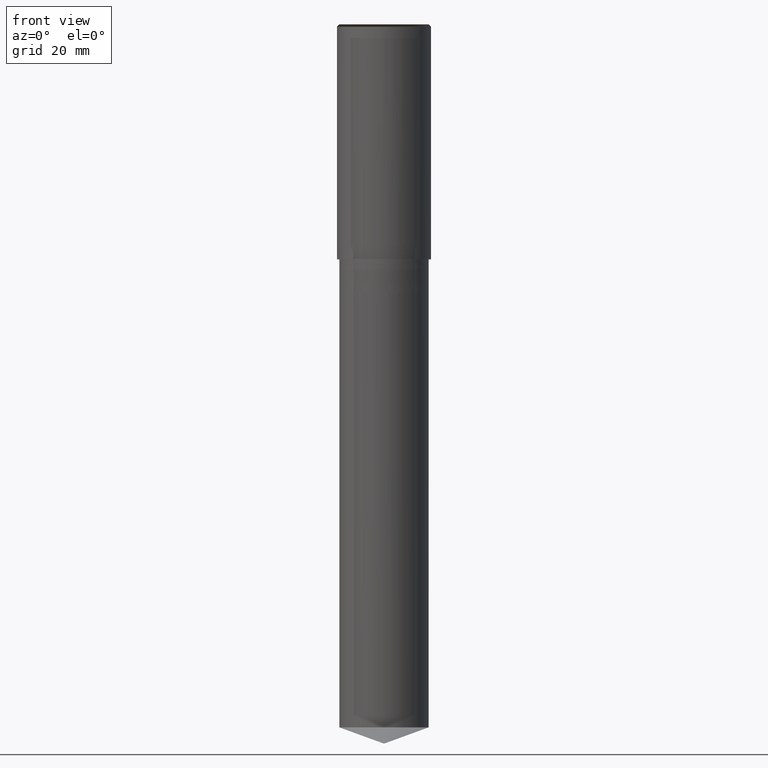
[diagram: clean part render]
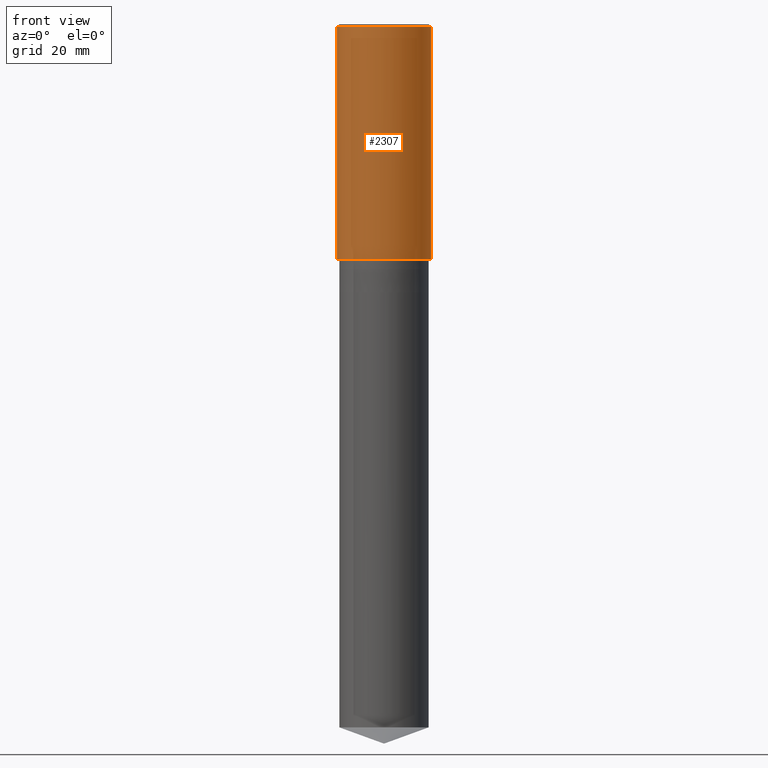
[diagram: same view with one face highlighted and labeled with its STEP entity id]
A machine part, front view. The second image highlights one B-rep face of the part: STEP entity #2307.
In plain terms, the highlighted face is a freeform B-spline surface patch.
Its self-contained STEP definition (entity closure, byte-faithful):
#1936=CARTESIAN_POINT('',(10.0,0.0,0.0));
#1940=CARTESIAN_POINT('',(-10.0,0.0,0.0));
#1941=CARTESIAN_POINT('',(10.0,0.0,49.5));
#1945=CARTESIAN_POINT('',(-10.0,0.0,49.5));
#1958=CARTESIAN_POINT('',(-10.0,-10.0,0.0));
#1959=CARTESIAN_POINT('',(0.0,-10.0,0.0));
#1960=CARTESIAN_POINT('',(10.0,-10.0,0.0));
#1961=CARTESIAN_POINT('',(-10.0,-10.0,49.5));
#1962=CARTESIAN_POINT('',(0.0,-10.0,49.5));
#1963=CARTESIAN_POINT('',(10.0,-10.0,49.5));
#2288=(
BOUNDED_SURFACE()
B_SPLINE_SURFACE(1,2,(
(#1940,#1958,#1959,#1960,#1936),
(#1945,#1961,#1962,#1963,#1941)
), .UNSPECIFIED.,.F.,.F.,.F.)
B_SPLINE_SURFACE_WITH_KNOTS((2,2),(3,2,3),(
0.0,1.0),(
0.0,0.5,1.0), .UNSPECIFIED.)
GEOMETRIC_REPRESENTATION_ITEM()
RATIONAL_B_SPLINE_SURFACE(((1.0,0.707106781187,1.0,0.707106781187,1.0),
(1.0,0.707106781187,1.0,0.707106781187,1.0)
))
REPRESENTATION_ITEM('')
SURFACE()
);
#2289=(
BOUNDED_CURVE()
B_SPLINE_CURVE(2,(#1936,#1960,#1959,#1958,#1940),.UNSPECIFIED.,.F.,.F.)
B_SPLINE_CURVE_WITH_KNOTS((3,2,3),
(0.0,0.5,1.0),.UNSPECIFIED.)
CURVE()
GEOMETRIC_REPRESENTATION_ITEM()
RATIONAL_B_SPLINE_CURVE((1.0,0.707106781187,1.0,0.707106781187,1.0))
REPRESENTATION_ITEM('')
);
#2290=(
BOUNDED_CURVE()
B_SPLINE_CURVE(1,(#1940,#1945),.UNSPECIFIED.,.F.,.F.)
B_SPLINE_CURVE_WITH_KNOTS((2,2),
(0.0,1.0),.UNSPECIFIED.)
CURVE()
GEOMETRIC_REPRESENTATION_ITEM()
RATIONAL_B_SPLINE_CURVE((1.0,1.0))
REPRESENTATION_ITEM('')
);
#2291=(
BOUNDED_CURVE()
B_SPLINE_CURVE(2,(#1945,#1961,#1962,#1963,#1941),.UNSPECIFIED.,.F.,.F.)
B_SPLINE_CURVE_WITH_KNOTS((3,2,3),
(0.0,0.5,1.0),.UNSPECIFIED.)
CURVE()
GEOMETRIC_REPRESENTATION_ITEM()
RATIONAL_B_SPLINE_CURVE((1.0,0.707106781187,1.0,0.707106781187,1.0))
REPRESENTATION_ITEM('')
);
#2292=(
BOUNDED_CURVE()
B_SPLINE_CURVE(1,(#1941,#1936),.UNSPECIFIED.,.F.,.F.)
B_SPLINE_CURVE_WITH_KNOTS((2,2),
(0.0,1.0),.UNSPECIFIED.)
CURVE()
GEOMETRIC_REPRESENTATION_ITEM()
RATIONAL_B_SPLINE_CURVE((1.0,1.0))
REPRESENTATION_ITEM('')
);
#2293=VERTEX_POINT('',#1936);
#2294=VERTEX_POINT('',#1940);
#2295=VERTEX_POINT('',#1941);
#2296=VERTEX_POINT('',#1945);
#2297=EDGE_CURVE('',#2293,#2294,#2289,.T.);
#2298=EDGE_CURVE('',#2294,#2296,#2290,.T.);
#2299=EDGE_CURVE('',#2296,#2295,#2291,.T.);
#2300=EDGE_CURVE('',#2295,#2293,#2292,.T.);
#2301=ORIENTED_EDGE('',*,*,#2297,.T.);
#2302=ORIENTED_EDGE('',*,*,#2298,.T.);
#2303=ORIENTED_EDGE('',*,*,#2299,.T.);
#2304=ORIENTED_EDGE('',*,*,#2300,.T.);
#2305=EDGE_LOOP('',(#2301,#2302,#2303,#2304));
#2306=FACE_OUTER_BOUND('',#2305,.T.);
#2307=ADVANCED_FACE('',(#2306),#2288,.T.);